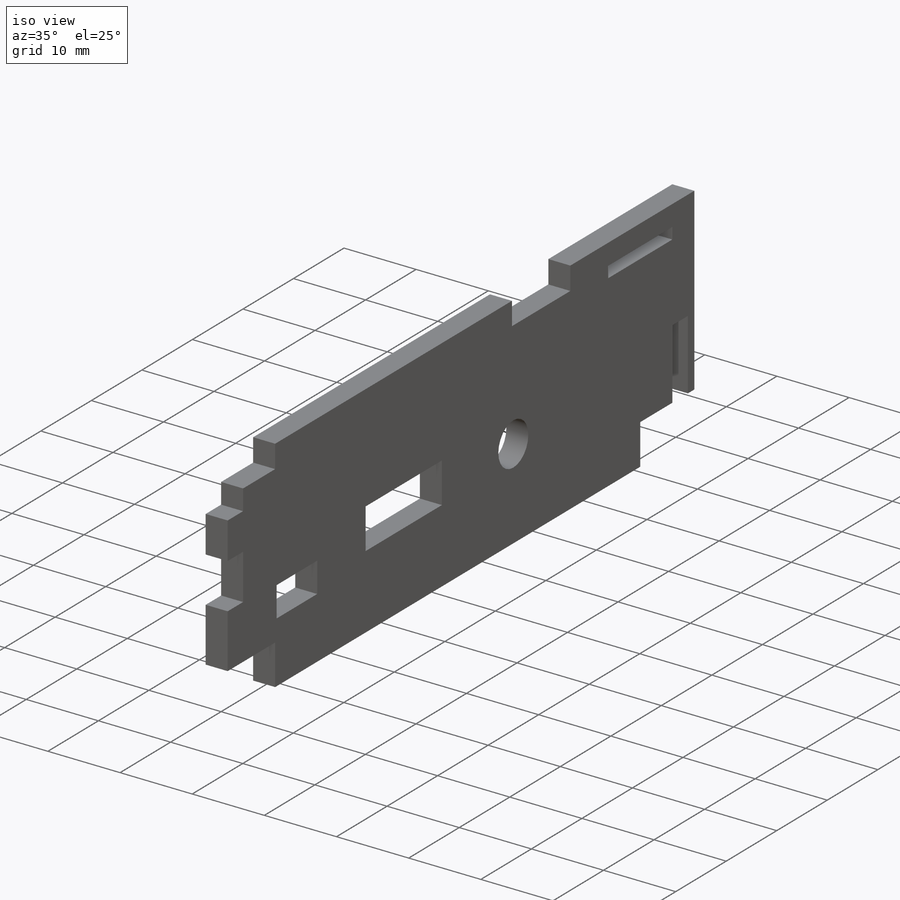
[diagram: iso view]
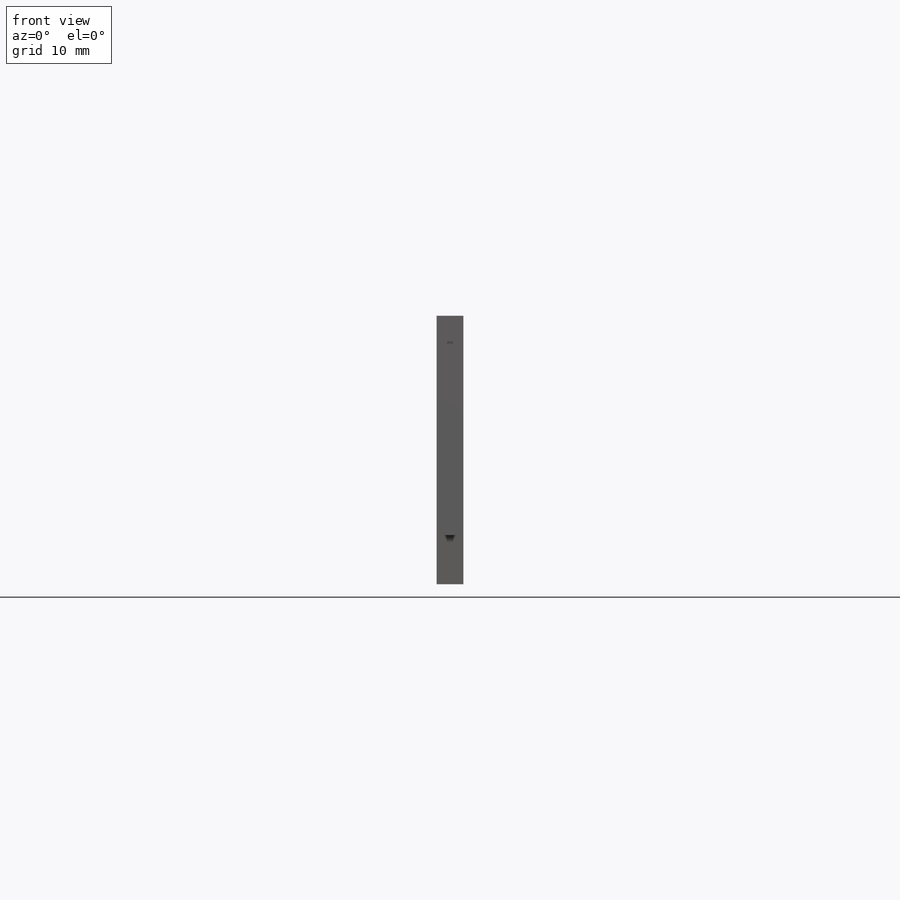
[diagram: front view]
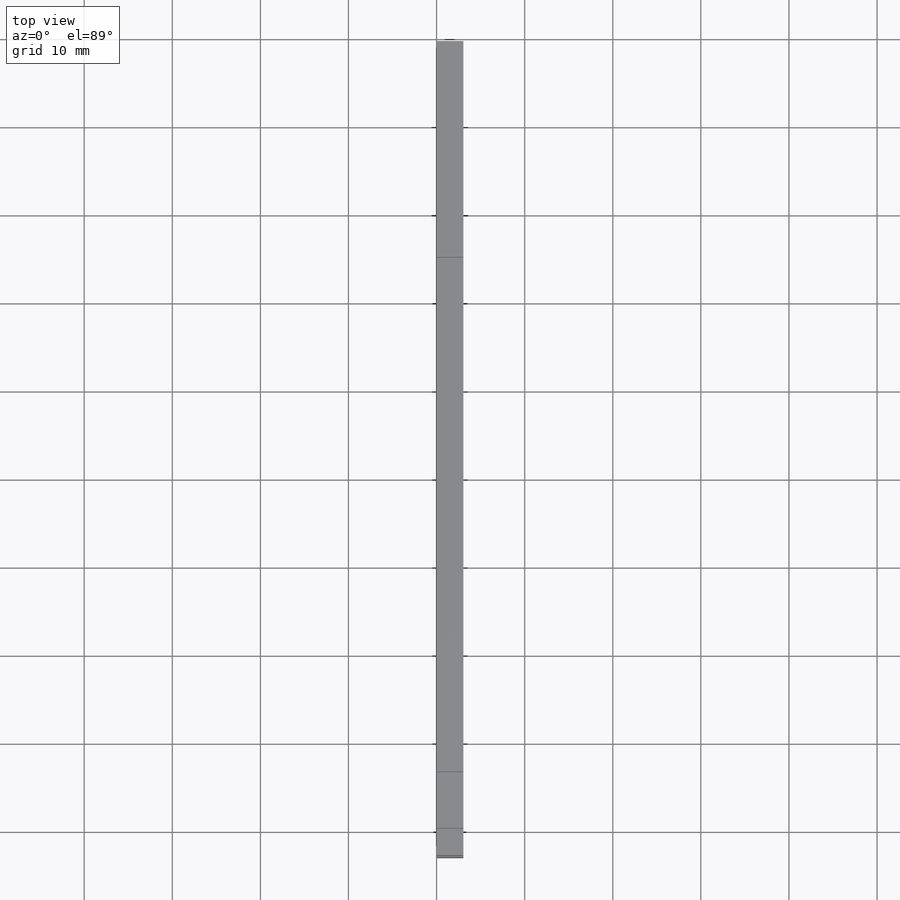
[diagram: top view]
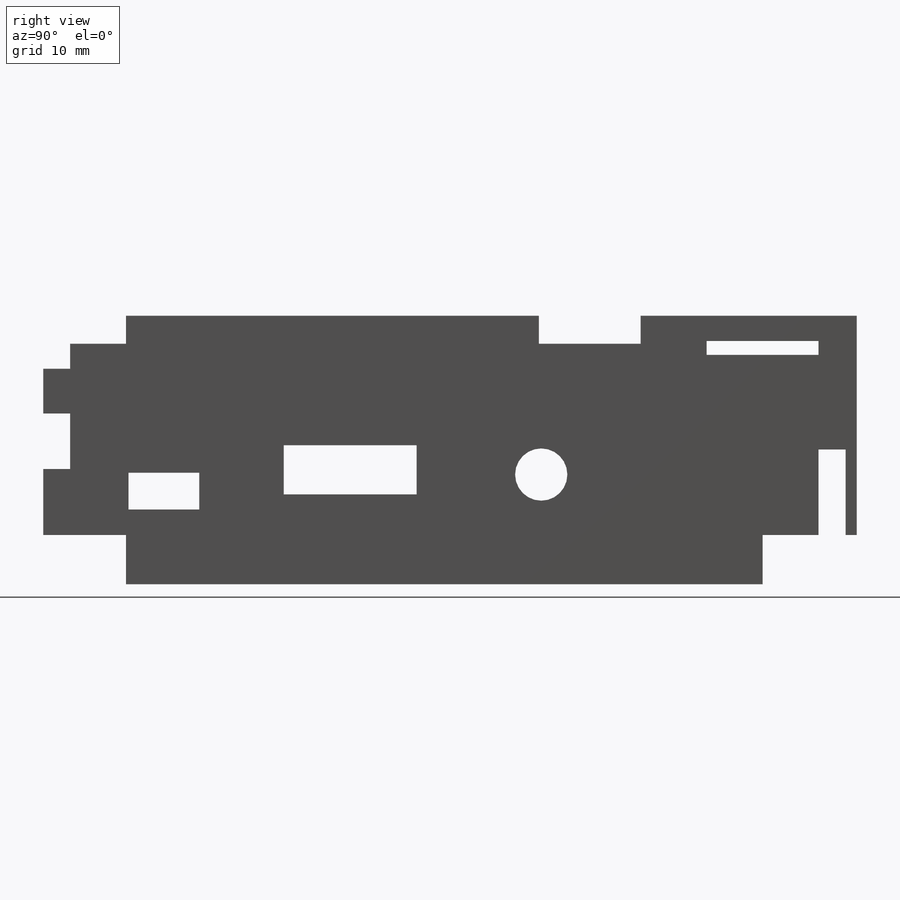
[diagram: right view]
SOLIDWORKS PART (.sldprt)
format: sldprt  version: not decoded by parser v0  size: 350,720 bytes
history: native  units: mm
features: sketch x5, extrude x3, material x1, cut_extrude x1 (+11 scaffold rows collapsed)
feature tree (21):
  scaffold x11  (default folders/planes/origin — collapsed)
  material  "Material <not specified>"
  sketch  "Sketch2"  dims[c1.D11=5.9309mm c1.D13=5.9309mm c1.D1=84.963mm c1.D2=8.0391mm c1.D3=15.0876mm c1.D4=4.6609mm c1.D5=4.1783mm c1.D6=6.6294mm c1.D7=7.7851mm c1.D8=5.588mm c1.D9=9.5885mm c1.D10=4.7244mm c1.D12=7.4168mm c2.D13=11.176mm c2.D14=19.304mm c2.D15=1.8034mm c2.D16=2.54mm c3.D15=1.8034mm c3.D16=63.5mm c4.D15=6.35mm c4.D16=3.175mm c4.D17=3.175mm c4.D18=38.1mm c4.D19=1.8034mm c4.D20=5.08mm c4.D21=5.08mm c4.D22=6.35mm c4.D23=31.75mm c5.D19=3.048mm c5.D20=2.8448mm c5.D21=5.08mm c5.D22=5.08mm c5.D24=1.8034mm c5.D25=1.27mm c5.D26=12.7mm]
  extrude  "Boss-Extrude1"  Depth=3.048mm
  sketch  "Sketch3"  dims[D1=1.5748mm]
  extrude  "made hood slot smaller"  [1 undecoded]
  sketch  "Sketch4"
  sketch  "Sketch5"
  cut_extrude  "Cut-Extrude1"  [1 undecoded]
  sketch  "Sketch7"  dims[D1=2.413mm D2=5.588mm D3=6.35mm]
  extrude  "Boss-Extrude2"  Depth=3.048mm
decode coverage: 5 of 9 modeling features carry decoded parameters
note: 2 parameter values undecoded
note: suppression state not decoded; provenance and decode notes live in map.json
